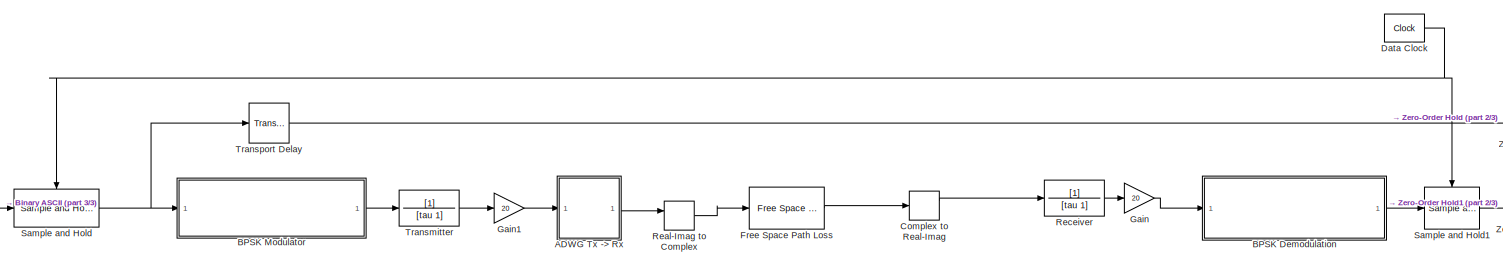
[diagram: root canvas - part 1/3, most of the canvas]
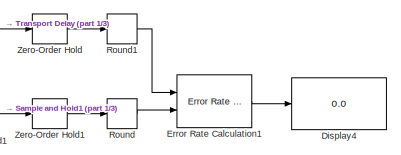
[diagram: root canvas - part 2/3, middle right region]
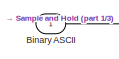
[diagram: root canvas - part 3/3, bottom left region]
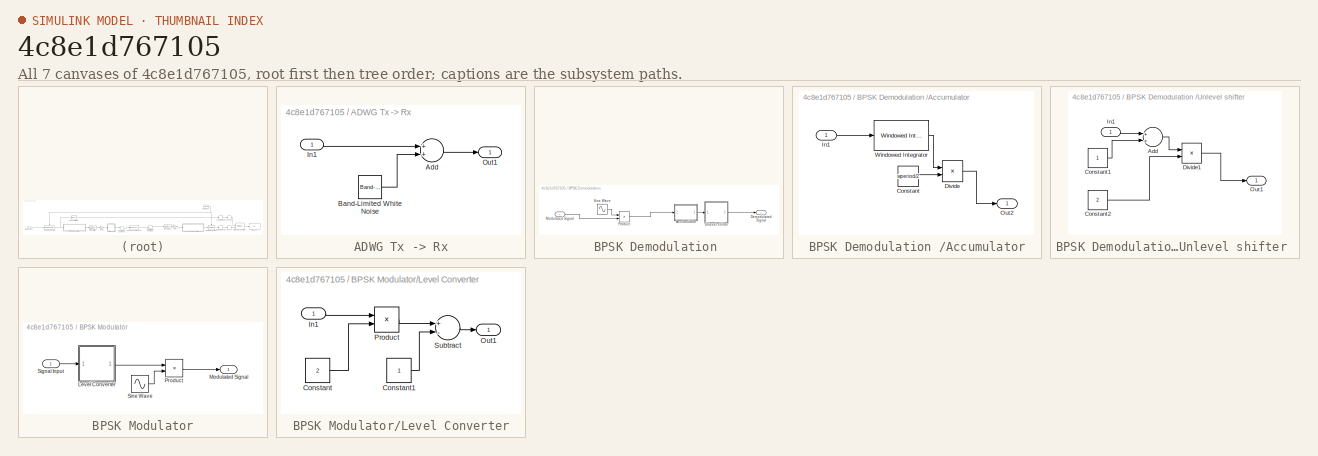
[diagram: thumbnail index - all 7 canvases of the model, root first then tree order]
MODEL slx_4c8e1d767105
KIND model
CONFIG AbsTol = auto
CONFIG EnableMultiTasking = off
CONFIG FixedStep = auto
CONFIG MaxStep = auto
CONFIG MinStep = auto
CONFIG RelTol = 1e-3
CONFIG SampleTimeConstraint = Unconstrained
CONFIG Solver = VariableStepAuto
CONFIG SolverName = VariableStepAuto
CONFIG StartTime = 0.0
CONFIG StopTime = 1e-07
WORKSPACE source: mxarray member
WORKSPACE PiFc = 6283.18530718
BLOCK [SubSystem] ADWG Tx -> Rx
  Ports = [1, 1]
  RequestExecContextInheritance = off
BLOCK [Sum] ADWG Tx -> Rx/Add
  InputSameDT = off
  OutDataTypeStr = Inherit: Inherit via internal rule
  Ports = [2, 1]
  SaturateOnIntegerOverflow = off
BLOCK [Reference] ADWG Tx -> Rx/Band-Limited White Noise  REF=simulink/Sources/Band-Limited
White Noise
  Ports = [0, 1]
  SourceBlock = simulink/Sources/Band-Limited\nWhite Noise
  SourceProductBaseCode = SL
  SourceProductName = Simulink
  SourceType = Band-Limited White Noise.
BLOCK [Inport] ADWG Tx -> Rx/In1
  IconDisplay = Port number
BLOCK [Outport] ADWG Tx -> Rx/Out1
  IconDisplay = Port number
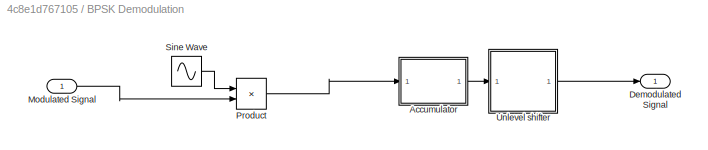
BLOCK [SubSystem] BPSK Demodulation 
  Ports = [1, 1]
  RequestExecContextInheritance = off
BLOCK [SubSystem] BPSK Demodulation /Accumulator
  Ports = [1, 1]
  RequestExecContextInheritance = off
BLOCK [Constant] BPSK Demodulation /Accumulator/Constant
  Value = wperiod/2
BLOCK [Product] BPSK Demodulation /Accumulator/Divide
  InputSameDT = off
  Inputs = */
  OutDataTypeStr = Inherit: Inherit via internal rule
  Ports = [2, 1]
  RndMeth = Floor
  SaturateOnIntegerOverflow = off
BLOCK [Inport] BPSK Demodulation /Accumulator/In1
  IconDisplay = Port number
BLOCK [Outport] BPSK Demodulation /Accumulator/Out2
  IconDisplay = Port number
BLOCK [Reference] BPSK Demodulation /Accumulator/Windowed Integrator  REF=commfilt2/Windowed
Integrator
  Ports = [1, 1]
  SourceBlock = commfilt2/Windowed\nIntegrator
  SourceProductBaseCode = CM
  SourceProductName = Communications Toolbox
  SourceType = Windowed Integrator
  UserDataPersistent = on
BLOCK [Outport] BPSK Demodulation /Demodulated Signal
  IconDisplay = Port number
BLOCK [Inport] BPSK Demodulation /Modulated Signal 
  IconDisplay = Port number
BLOCK [Product] BPSK Demodulation /Product
  InputSameDT = off
  OutDataTypeStr = Inherit: Inherit via internal rule
  Ports = [2, 1]
  RndMeth = Floor
  SaturateOnIntegerOverflow = off
BLOCK [Sin] BPSK Demodulation /Sine Wave
  Frequency = Fc * 2 * pi
  Phase = pi
  Ports = [0, 1]
  SampleTime = SampSin
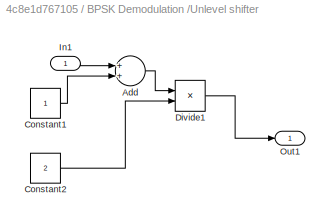
BLOCK [SubSystem] BPSK Demodulation /Unlevel shifter 
  Ports = [1, 1]
  RequestExecContextInheritance = off
BLOCK [Sum] BPSK Demodulation /Unlevel shifter /Add
  InputSameDT = off
  OutDataTypeStr = Inherit: Inherit via internal rule
  Ports = [2, 1]
  SaturateOnIntegerOverflow = off
BLOCK [Constant] BPSK Demodulation /Unlevel shifter /Constant1
BLOCK [Constant] BPSK Demodulation /Unlevel shifter /Constant2
  Value = 2
BLOCK [Product] BPSK Demodulation /Unlevel shifter /Divide1
  InputSameDT = off
  Inputs = */
  OutDataTypeStr = Inherit: Inherit via internal rule
  Ports = [2, 1]
  RndMeth = Floor
  SaturateOnIntegerOverflow = off
BLOCK [Inport] BPSK Demodulation /Unlevel shifter /In1
  IconDisplay = Port number
BLOCK [Outport] BPSK Demodulation /Unlevel shifter /Out1
  IconDisplay = Port number
BLOCK [SubSystem] BPSK Modulator
  Ports = [1, 1]
  RequestExecContextInheritance = off
BLOCK [SubSystem] BPSK Modulator/Level Converter
  Ports = [1, 1]
  RequestExecContextInheritance = off
BLOCK [Constant] BPSK Modulator/Level Converter/Constant
  Value = 2
BLOCK [Constant] BPSK Modulator/Level Converter/Constant1
BLOCK [Inport] BPSK Modulator/Level Converter/In1
  IconDisplay = Port number
BLOCK [Outport] BPSK Modulator/Level Converter/Out1
  IconDisplay = Port number
BLOCK [Product] BPSK Modulator/Level Converter/Product
  InputSameDT = off
  OutDataTypeStr = Inherit: Inherit via internal rule
  Ports = [2, 1]
  RndMeth = Floor
  SaturateOnIntegerOverflow = off
BLOCK [Sum] BPSK Modulator/Level Converter/Subtract
  InputSameDT = off
  Inputs = +-
  OutDataTypeStr = Inherit: Inherit via internal rule
  Ports = [2, 1]
  SaturateOnIntegerOverflow = off
BLOCK [Outport] BPSK Modulator/Modulated Signal
  IconDisplay = Port number
BLOCK [Product] BPSK Modulator/Product
  InputSameDT = off
  OutDataTypeStr = Inherit: Inherit via internal rule
  Ports = [2, 1]
  RndMeth = Floor
  SaturateOnIntegerOverflow = off
BLOCK [Inport] BPSK Modulator/Signal Input
  IconDisplay = Port number
BLOCK [Sin] BPSK Modulator/Sine Wave
  Frequency = Fc * 2 * pi
  Phase = pi
  Ports = [0, 1]
  SampleTime = SampSin
BLOCK [Inport] Binary ASCII
  IconDisplay = Port number
  Interpolate = off
  VarSizeSig = No
BLOCK [ComplexToRealImag] Complex to Real-Imag
  Ports = [1, 2]
BLOCK [Reference] Data Clock  REF=simulink_extras/Flip Flops/Clock
  Ports = [0, 1]
  SourceBlock = simulink_extras/Flip Flops/Clock
  SourceProductBaseCode = SL
  SourceProductName = Simulink
  SourceType = Digital clock
BLOCK [Display] Display4
  Decimation = 1
  Ports = [1]
BLOCK [Reference] Error Rate Calculation1  REF=commsink2/Error Rate
Calculation
  Ports = [2, 1]
  SourceBlock = commsink2/Error Rate\nCalculation
  SourceProductBaseCode = CM
  SourceProductName = Communications Toolbox
  SourceType = Error Rate Calculation
BLOCK [Reference] Free Space Path Loss  REF=commrflib2/Free Space
Path Loss
  Ports = [1, 1]
  SourceBlock = commrflib2/Free Space\nPath Loss
  SourceProductBaseCode = CM
  SourceProductName = Communications Toolbox
  SourceType = Free Space Path Loss
BLOCK [Gain] Gain
  Gain = 20
  OutDataTypeStr = Inherit: Inherit via internal rule
  ParamDataTypeStr = Inherit: Inherit via internal rule
  SaturateOnIntegerOverflow = off
BLOCK [Gain] Gain1
  Gain = 20
  OutDataTypeStr = Inherit: Inherit via internal rule
  ParamDataTypeStr = Inherit: Inherit via internal rule
  SaturateOnIntegerOverflow = off
BLOCK [RealImagToComplex] Real-Imag to Complex
  Ports = [2, 1]
BLOCK [TransferFcn] Receiver
  Denominator = [tau 1]
BLOCK [Rounding] Round
  Operator = round
BLOCK [Rounding] Round1
  Operator = round
BLOCK [Reference] Sample and Hold  REF=dspsigops/Sample
and Hold
  Ports = [1, 1, 0, 1]
  SourceBlock = dspsigops/Sample\nand Hold
  SourceProductBaseCode = DS
  SourceProductName = DSP System Toolbox
  SourceType = Sample and Hold
BLOCK [Reference] Sample and Hold1  REF=dspsigops/Sample
and Hold
  Ports = [1, 1, 0, 1]
  SourceBlock = dspsigops/Sample\nand Hold
  SourceProductBaseCode = DS
  SourceProductName = DSP System Toolbox
  SourceType = Sample and Hold
BLOCK [TransferFcn] Transmitter
  Denominator = [tau 1]
BLOCK [TransportDelay] Transport Delay
  DelayTime = Tb
  Ports = [1, 1]
BLOCK [ZeroOrderHold] Zero-Order Hold
  SampleTime = Tb
BLOCK [ZeroOrderHold] Zero-Order Hold1
  SampleTime = Tb
LINE ADWG Tx -> Rx/Add:1 -> ADWG Tx -> Rx/Out1:1
LINE ADWG Tx -> Rx/Band-Limited White Noise:1 -> ADWG Tx -> Rx/Add:2
LINE ADWG Tx -> Rx/In1:1 -> ADWG Tx -> Rx/Add:1
LINE ADWG Tx -> Rx:1 -> Real-Imag to Complex:1
LINE BPSK Demodulation /Accumulator/Constant:1 -> BPSK Demodulation /Accumulator/Divide:2
LINE BPSK Demodulation /Accumulator/Divide:1 -> BPSK Demodulation /Accumulator/Out2:1
LINE BPSK Demodulation /Accumulator/In1:1 -> BPSK Demodulation /Accumulator/Windowed Integrator:1
LINE BPSK Demodulation /Accumulator/Windowed Integrator:1 -> BPSK Demodulation /Accumulator/Divide:1
LINE BPSK Demodulation /Accumulator:1 -> BPSK Demodulation /Unlevel shifter :1
LINE BPSK Demodulation /Modulated Signal :1 -> BPSK Demodulation /Product:2
LINE BPSK Demodulation /Product:1 -> BPSK Demodulation /Accumulator:1
LINE BPSK Demodulation /Sine Wave:1 -> BPSK Demodulation /Product:1
LINE BPSK Demodulation /Unlevel shifter /Add:1 -> BPSK Demodulation /Unlevel shifter /Divide1:1
LINE BPSK Demodulation /Unlevel shifter /Constant1:1 -> BPSK Demodulation /Unlevel shifter /Add:2
LINE BPSK Demodulation /Unlevel shifter /Constant2:1 -> BPSK Demodulation /Unlevel shifter /Divide1:2
LINE BPSK Demodulation /Unlevel shifter /Divide1:1 -> BPSK Demodulation /Unlevel shifter /Out1:1
LINE BPSK Demodulation /Unlevel shifter /In1:1 -> BPSK Demodulation /Unlevel shifter /Add:1
LINE BPSK Demodulation /Unlevel shifter :1 -> BPSK Demodulation /Demodulated Signal:1
LINE BPSK Demodulation :1 -> Sample and Hold1:1
LINE BPSK Modulator/Level Converter/Constant1:1 -> BPSK Modulator/Level Converter/Subtract:2
LINE BPSK Modulator/Level Converter/Constant:1 -> BPSK Modulator/Level Converter/Product:2
LINE BPSK Modulator/Level Converter/In1:1 -> BPSK Modulator/Level Converter/Product:1
LINE BPSK Modulator/Level Converter/Product:1 -> BPSK Modulator/Level Converter/Subtract:1
LINE BPSK Modulator/Level Converter/Subtract:1 -> BPSK Modulator/Level Converter/Out1:1
LINE BPSK Modulator/Level Converter:1 -> BPSK Modulator/Product:1
LINE BPSK Modulator/Product:1 -> BPSK Modulator/Modulated Signal:1
LINE BPSK Modulator/Signal Input:1 -> BPSK Modulator/Level Converter:1
LINE BPSK Modulator/Sine Wave:1 -> BPSK Modulator/Product:2
LINE BPSK Modulator:1 -> Transmitter:1
LINE Binary ASCII:1 -> Sample and Hold:1
LINE Complex to Real-Imag:1 -> Receiver:1
NET Data Clock:1 -> Sample and Hold1:trigger, Sample and Hold:trigger
LINE Error Rate Calculation1:1 -> Display4:1
LINE Free Space Path Loss:1 -> Complex to Real-Imag:1
LINE Gain1:1 -> ADWG Tx -> Rx:1
LINE Gain:1 -> BPSK Demodulation :1
LINE Real-Imag to Complex:1 -> Free Space Path Loss:1
LINE Receiver:1 -> Gain:1
LINE Round1:1 -> Error Rate Calculation1:1
LINE Round:1 -> Error Rate Calculation1:2
LINE Sample and Hold1:1 -> Zero-Order Hold1:1
NET Sample and Hold:1 -> BPSK Modulator:1, Transport Delay:1
LINE Transmitter:1 -> Gain1:1
LINE Transport Delay:1 -> Zero-Order Hold:1
LINE Zero-Order Hold1:1 -> Round:1
LINE Zero-Order Hold:1 -> Round1:1
note: NET lines group one-source signal fan-out (src -> all destinations, sorted); 1:1 wires keep LINE
